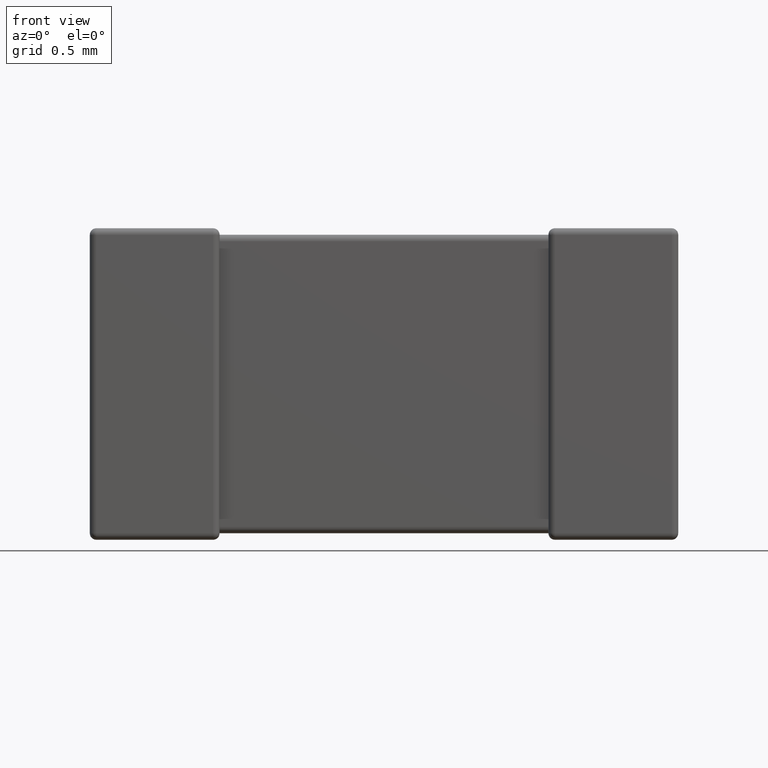
[diagram: clean part render]
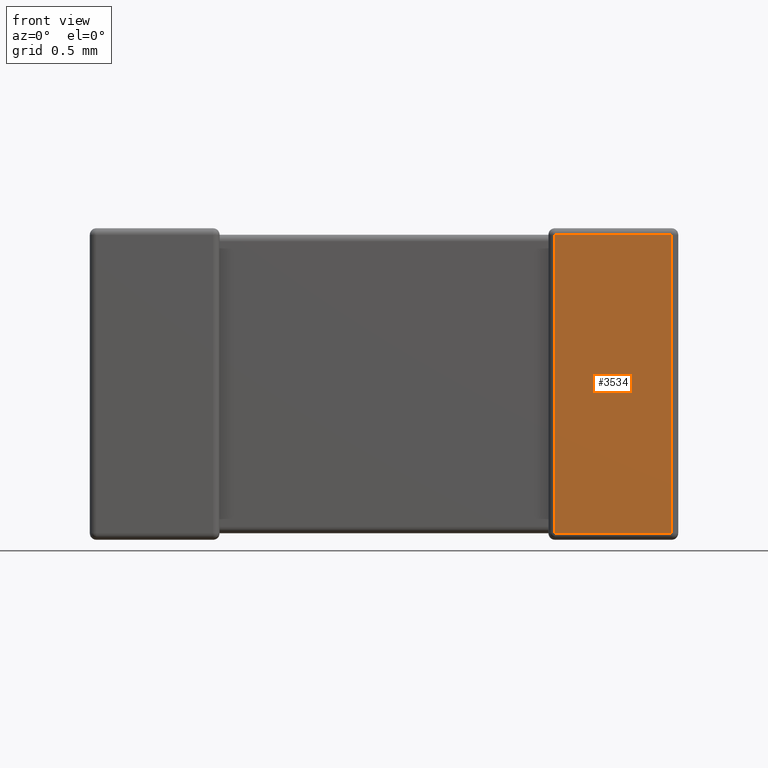
[diagram: same view with one face highlighted and labeled with its STEP entity id]
A machine part, front view. The second image highlights one B-rep face of the part: STEP entity #3534.
In plain terms, the highlighted planar face has unit normal (-0, 1, 0).
Its self-contained STEP definition (entity closure, byte-faithful):
#67 = VECTOR ( 'NONE', #946, 1000.000000000000000 ) ;
#226 = CARTESIAN_POINT ( 'NONE',  ( 3.400000000000000400, 0.0000000000000000000, -0.03744000000000000100 ) ) ;
#294 = DIRECTION ( 'NONE',  ( 0.0000000000000000000, -0.0000000000000000000, 1.000000000000000000 ) ) ;
#323 = VERTEX_POINT ( 'NONE', #4245 ) ;
#573 = VERTEX_POINT ( 'NONE', #2554 ) ;
#732 = ORIENTED_EDGE ( 'NONE', *, *, #3770, .T. ) ;
#742 = AXIS2_PLACEMENT_3D ( 'NONE', #3483, #3166, #294 ) ;
#934 = CARTESIAN_POINT ( 'NONE',  ( 2.687440000000000500, 0.0000000000000000000, -1.762560000000000100 ) ) ;
#946 = DIRECTION ( 'NONE',  ( 0.0000000000000000000, 0.0000000000000000000, -1.000000000000000000 ) ) ;
#958 = ORIENTED_EDGE ( 'NONE', *, *, #1338, .T. ) ;
#1035 = EDGE_CURVE ( 'NONE', #1446, #573, #1600, .T. ) ;
#1134 = ORIENTED_EDGE ( 'NONE', *, *, #1362, .T. ) ;
#1165 = DIRECTION ( 'NONE',  ( -0.0000000000000000000, -0.0000000000000000000, 1.000000000000000000 ) ) ;
#1338 = EDGE_CURVE ( 'NONE', #3783, #323, #4188, .T. ) ;
#1362 = EDGE_CURVE ( 'NONE', #323, #1446, #3963, .T. ) ;
#1446 = VERTEX_POINT ( 'NONE', #934 ) ;
#1506 = CARTESIAN_POINT ( 'NONE',  ( 3.362560000000000200, 0.0000000000000000000, -0.03744000000000000100 ) ) ;
#1600 = LINE ( 'NONE', #2817, #3395 ) ;
#2469 = PLANE ( 'NONE',  #742 ) ;
#2554 = CARTESIAN_POINT ( 'NONE',  ( 3.362560000000000200, 0.0000000000000000000, -1.762560000000000100 ) ) ;
#2800 = DIRECTION ( 'NONE',  ( 1.000000000000000000, 0.0000000000000000000, -0.0000000000000000000 ) ) ;
#2817 = CARTESIAN_POINT ( 'NONE',  ( 3.400000000000000400, 0.0000000000000000000, -1.762560000000000100 ) ) ;
#2833 = VECTOR ( 'NONE', #1165, 1000.000000000000000 ) ;
#3008 = ORIENTED_EDGE ( 'NONE', *, *, #1035, .T. ) ;
#3095 = CARTESIAN_POINT ( 'NONE',  ( 2.687440000000000500, 0.0000000000000000000, 0.0000000000000000000 ) ) ;
#3166 = DIRECTION ( 'NONE',  ( -0.0000000000000000000, 1.000000000000000000, 0.0000000000000000000 ) ) ;
#3304 = CARTESIAN_POINT ( 'NONE',  ( 3.362560000000000200, 0.0000000000000000000, 0.0000000000000000000 ) ) ;
#3395 = VECTOR ( 'NONE', #2800, 1000.000000000000000 ) ;
#3483 = CARTESIAN_POINT ( 'NONE',  ( 3.400000000000000400, 0.0000000000000000000, 0.0000000000000000000 ) ) ;
#3526 = FACE_OUTER_BOUND ( 'NONE', #3721, .T. ) ;
#3534 = ADVANCED_FACE ( 'NONE', ( #3526 ), #2469, .F. ) ;
#3721 = EDGE_LOOP ( 'NONE', ( #3008, #732, #958, #1134 ) ) ;
#3770 = EDGE_CURVE ( 'NONE', #573, #3783, #3802, .T. ) ;
#3783 = VERTEX_POINT ( 'NONE', #1506 ) ;
#3802 = LINE ( 'NONE', #3304, #2833 ) ;
#3963 = LINE ( 'NONE', #3095, #67 ) ;
#4188 = LINE ( 'NONE', #226, #4358 ) ;
#4245 = CARTESIAN_POINT ( 'NONE',  ( 2.687440000000000500, 0.0000000000000000000, -0.03744000000000000100 ) ) ;
#4358 = VECTOR ( 'NONE', #4530, 1000.000000000000000 ) ;
#4530 = DIRECTION ( 'NONE',  ( -1.000000000000000000, 0.0000000000000000000, 0.0000000000000000000 ) ) ;